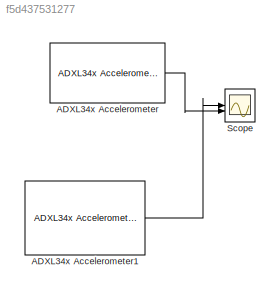
MODEL slx_f5d437531277
KIND model
CONFIG AbsTol = auto
CONFIG EnableMultiTasking = on
CONFIG FixedStep = auto
CONFIG MaxStep = auto
CONFIG MinStep = auto
CONFIG RelTol = 1e-3
CONFIG SampleTimeConstraint = Unconstrained
CONFIG SolverName = FixedStepAuto
CONFIG StartTime = 0.0
CONFIG StopTime = inf
BLOCK [Reference] ADXL34x Accelerometer  REF=arduinosensorlib/ADXL34x Accelerometer
  SourceBlock = arduinosensorlib/ADXL34x Accelerometer
  SourceType = ADXL34x Accelerometer
BLOCK [Reference] ADXL34x Accelerometer1  REF=arduinosensorlib/ADXL34x Accelerometer
  SourceBlock = arduinosensorlib/ADXL34x Accelerometer
  SourceType = ADXL34x Accelerometer
BLOCK [Scope] Scope
  Floating = off
  NumInputPorts = 2
  ScopeSpecificationString = Simulink.scopes.TimeScopeBlockCfg('CurrentConfiguration', extmgr.ConfigurationSet(extmgr.Configuration('Core','General UI',true),extmgr.Configuration('Core','Source UI',true),extmgr.Configuration('Sources','WiredSimulink',true),extmgr.Configuration('Visuals','Time Domain',true,'SerializedDisplays',{struct('MinYLimReal','-1.72441','MaxYLimReal','10.15488','YLabelReal','','MinYLimMag','0.00000','Max...<+1509ch>
LINE ADXL34x Accelerometer1:1 -> Scope:1
LINE ADXL34x Accelerometer:1 -> Scope:2
